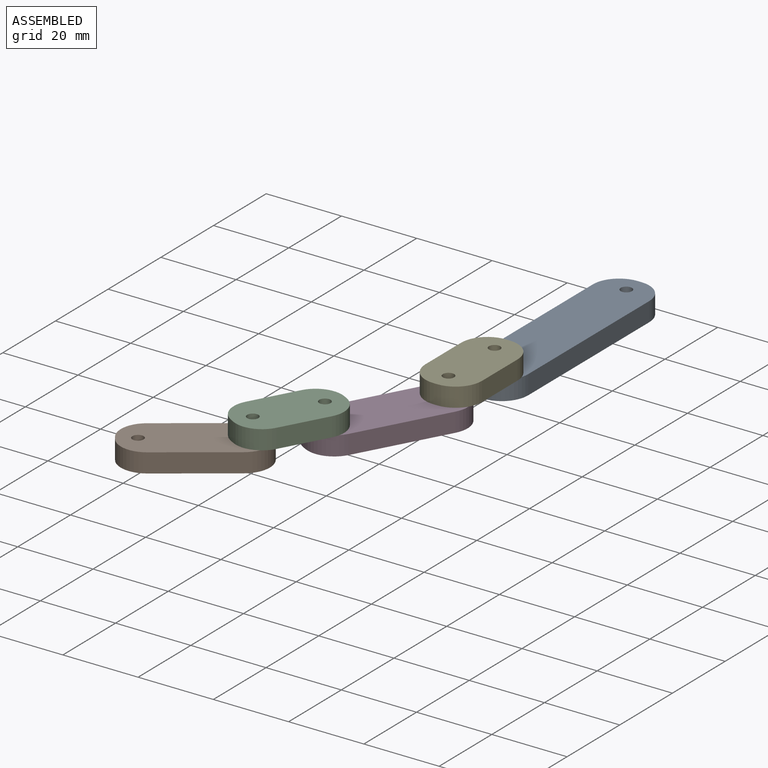
[diagram: assembled view]
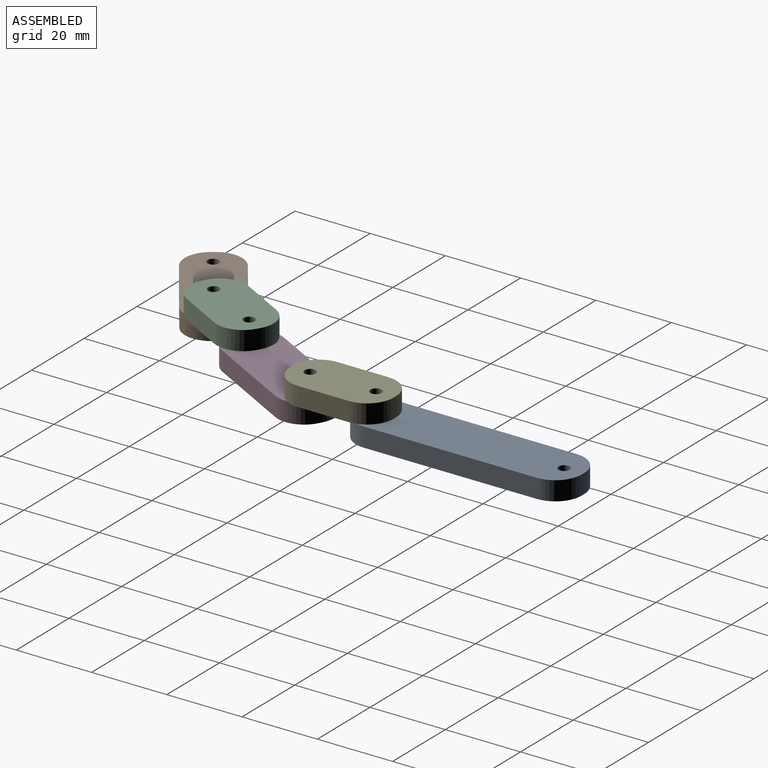
[diagram: assembled view, second angle]
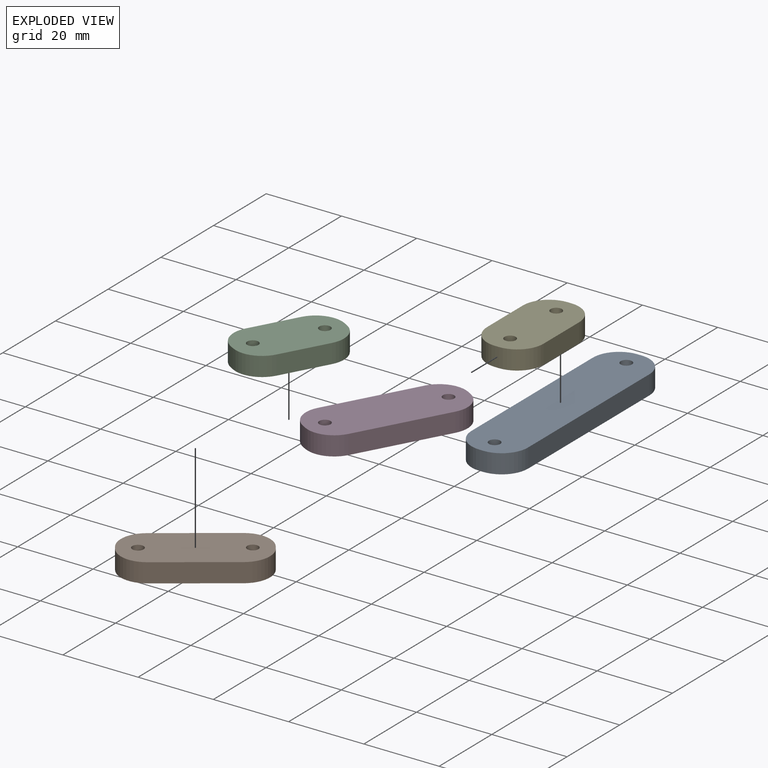
[diagram: exploded view]
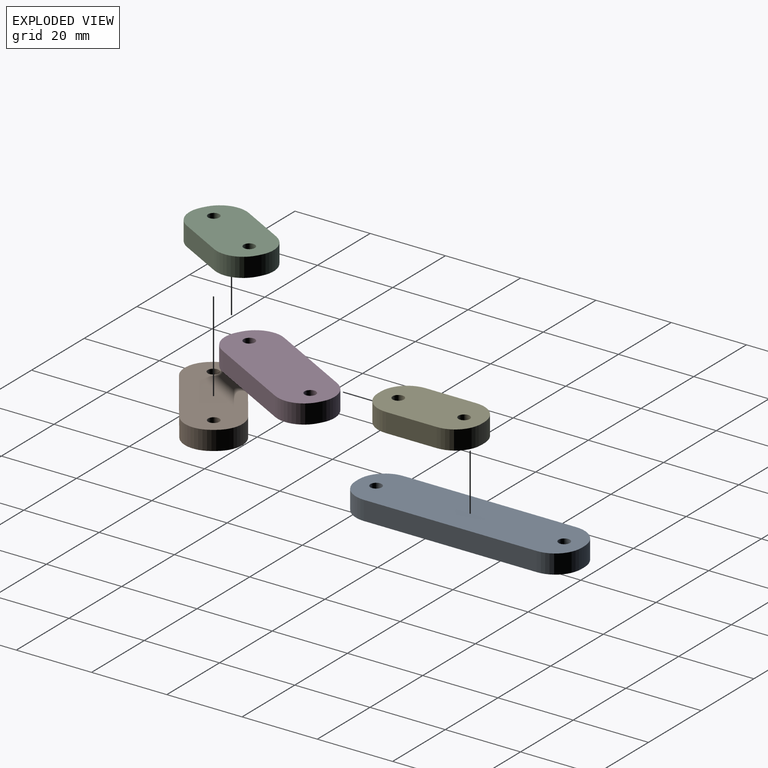
[diagram: exploded view, second angle]
ASSEMBLY  parts=5 mates=4
PART A: 12 faces, bbox 15x60x5.1 mm
  f0: plane 46x5.08mm, normal (-1,0,0), area 233.7mm2, adj f6,f7,f8,f11
  f1: plane 5.08x1mm, normal (0,-1,0), area 5.1mm2, adj f6,f7,f8,f9
  f2: plane 46x5.08mm, normal (1,0,0), area 233.7mm2, adj f6,f7,f9,f10
  f3: cylinder r=1.5mm len=5.08mm, axis (0,0,-1), area 47.9mm2, adj f6,f7
  f4: plane 5.08x1mm, normal (0,1,0), area 5.1mm2, adj f6,f7,f10,f11
  f5: cylinder r=1.5mm len=5.08mm, axis (0,0,-1), area 47.9mm2, adj f6,f7
  f6: plane 60x15mm, normal (0,0,1), area 843.8mm2, adj f0,f1,f2,f3,f4,f5,f8,f9
  f7: plane 60x15mm, normal (0,0,-1), area 843.8mm2, adj f0,f1,f2,f3,f4,f5,f8,f9
  f8: cylinder r=7mm len=7mm, axis (0,0,-1), area 55.9mm2, adj f0,f1,f6,f7
  f9: cylinder r=7mm len=7mm, axis (0,0,1), area 55.9mm2, adj f1,f2,f6,f7
  f10: cylinder r=7mm len=7mm, axis (0,0,-1), area 55.9mm2, adj f2,f4,f6,f7
  f11: cylinder r=7mm len=7mm, axis (0,0,1), area 55.9mm2, adj f0,f4,f6,f7
PART B: 12 faces, bbox 15x35x5.1 mm
  f0: plane 21x5.08mm, normal (-1,0,0), area 106.7mm2, adj f6,f7,f8,f11
  f1: plane 5.08x1mm, normal (0,-1,0), area 5.1mm2, adj f6,f7,f8,f9
  f2: plane 21x5.08mm, normal (1,0,0), area 106.7mm2, adj f6,f7,f9,f10
  f3: cylinder r=1.5mm len=5.08mm, axis (0,0,-1), area 47.9mm2, adj f6,f7
  f4: plane 5.08x1mm, normal (0,1,0), area 5.1mm2, adj f6,f7,f10,f11
  f5: cylinder r=1.5mm len=5.08mm, axis (0,0,-1), area 47.9mm2, adj f6,f7
  f6: plane 35x15mm, normal (0,0,1), area 468.8mm2, adj f0,f1,f2,f3,f4,f5,f8,f9
  f7: plane 35x15mm, normal (0,0,-1), area 468.8mm2, adj f0,f1,f2,f3,f4,f5,f8,f9
  f8: cylinder r=7mm len=7mm, axis (0,0,-1), area 55.9mm2, adj f0,f1,f6,f7
  f9: cylinder r=7mm len=7mm, axis (0,0,1), area 55.9mm2, adj f1,f2,f6,f7
  f10: cylinder r=7mm len=7mm, axis (0,0,-1), area 55.9mm2, adj f2,f4,f6,f7
  f11: cylinder r=7mm len=7mm, axis (0,0,1), area 55.9mm2, adj f0,f4,f6,f7
PART C: 12 faces, bbox 15x27.5x5.1 mm
  f0: plane 5.08x1mm, normal (0,-1,0), area 5.1mm2, adj f6,f7,f8,f11
  f1: plane 13.5x5.08mm, normal (1,0,0), area 68.6mm2, adj f6,f7,f8,f9
  f2: plane 5.08x1mm, normal (0,1,0), area 5.1mm2, adj f6,f7,f9,f10
  f3: cylinder r=1.5mm len=5.08mm, axis (0,0,-1), area 47.9mm2, adj f6,f7
  f4: cylinder r=1.5mm len=5.08mm, axis (0,0,-1), area 47.9mm2, adj f6,f7
  f5: plane 13.5x5.08mm, normal (-1,0,0), area 68.6mm2, adj f6,f7,f10,f11
  f6: plane 27.5x15mm, normal (0,0,1), area 356.3mm2, adj f0,f1,f2,f3,f4,f5,f8,f9
  f7: plane 27.5x15mm, normal (0,0,-1), area 356.3mm2, adj f0,f1,f2,f3,f4,f5,f8,f9
  f8: cylinder r=7mm len=7mm, axis (0,0,-1), area 55.9mm2, adj f0,f1,f6,f7
  f9: cylinder r=7mm len=7mm, axis (0,0,1), area 55.9mm2, adj f1,f2,f6,f7
  f10: cylinder r=7mm len=7mm, axis (0,0,-1), area 55.9mm2, adj f2,f5,f6,f7
  f11: cylinder r=7mm len=7mm, axis (0,0,1), area 55.9mm2, adj f0,f5,f6,f7
PART D: 12 faces, bbox 15x40x5.1 mm
  f0: plane 26x5.08mm, normal (-1,0,0), area 132.1mm2, adj f6,f7,f8,f11
  f1: plane 5.08x1mm, normal (0,-1,0), area 5.1mm2, adj f6,f7,f8,f9
  f2: plane 26x5.08mm, normal (1,0,0), area 132.1mm2, adj f6,f7,f9,f10
  f3: cylinder r=1.5mm len=5.08mm, axis (0,0,-1), area 47.9mm2, adj f6,f7
  f4: plane 5.08x1mm, normal (0,1,0), area 5.1mm2, adj f6,f7,f10,f11
  f5: cylinder r=1.5mm len=5.08mm, axis (0,0,-1), area 47.9mm2, adj f6,f7
  f6: plane 40x15mm, normal (0,0,1), area 543.8mm2, adj f0,f1,f2,f3,f4,f5,f8,f9
  f7: plane 40x15mm, normal (0,0,-1), area 543.8mm2, adj f0,f1,f2,f3,f4,f5,f8,f9
  f8: cylinder r=7mm len=7mm, axis (0,0,-1), area 55.9mm2, adj f0,f1,f6,f7
  f9: cylinder r=7mm len=7mm, axis (0,0,1), area 55.9mm2, adj f1,f2,f6,f7
  f10: cylinder r=7mm len=7mm, axis (0,0,-1), area 55.9mm2, adj f2,f4,f6,f7
  f11: cylinder r=7mm len=7mm, axis (0,0,1), area 55.9mm2, adj f0,f4,f6,f7
PART E: same geometry as C
PLACE A t=(-27.51,-110.79,36.43)mm
PLACE B rot(axis=(0,0,-1),54.8deg) t=(-108.43,-20.22,36.43)mm
PLACE C rot(axis=(0,0,-1),28.8deg) t=(-114.89,-90.78,41.51)mm
PLACE D rot(axis=(0,0,-1),28.8deg) t=(-72,-67.42,36.43)mm
PLACE E rot(axis=(0,1,0),180deg) t=(121.8,-103.96,46.59)mm fixed
MATE revolute D.f3 <-> E.f4  axis (0,0,1) through (33.96,-2.12,41.51)mm
MATE revolute E.f3 <-> A.f5  axis (0,0,-1) through (33.96,15.38,41.51)mm
MATE revolute C.f3 <-> D.f5  axis (0,0,-1) through (19.53,-28.42,41.51)mm
MATE revolute B.f3 <-> C.f4  axis (0,0,1) through (11.11,-43.76,41.51)mm
